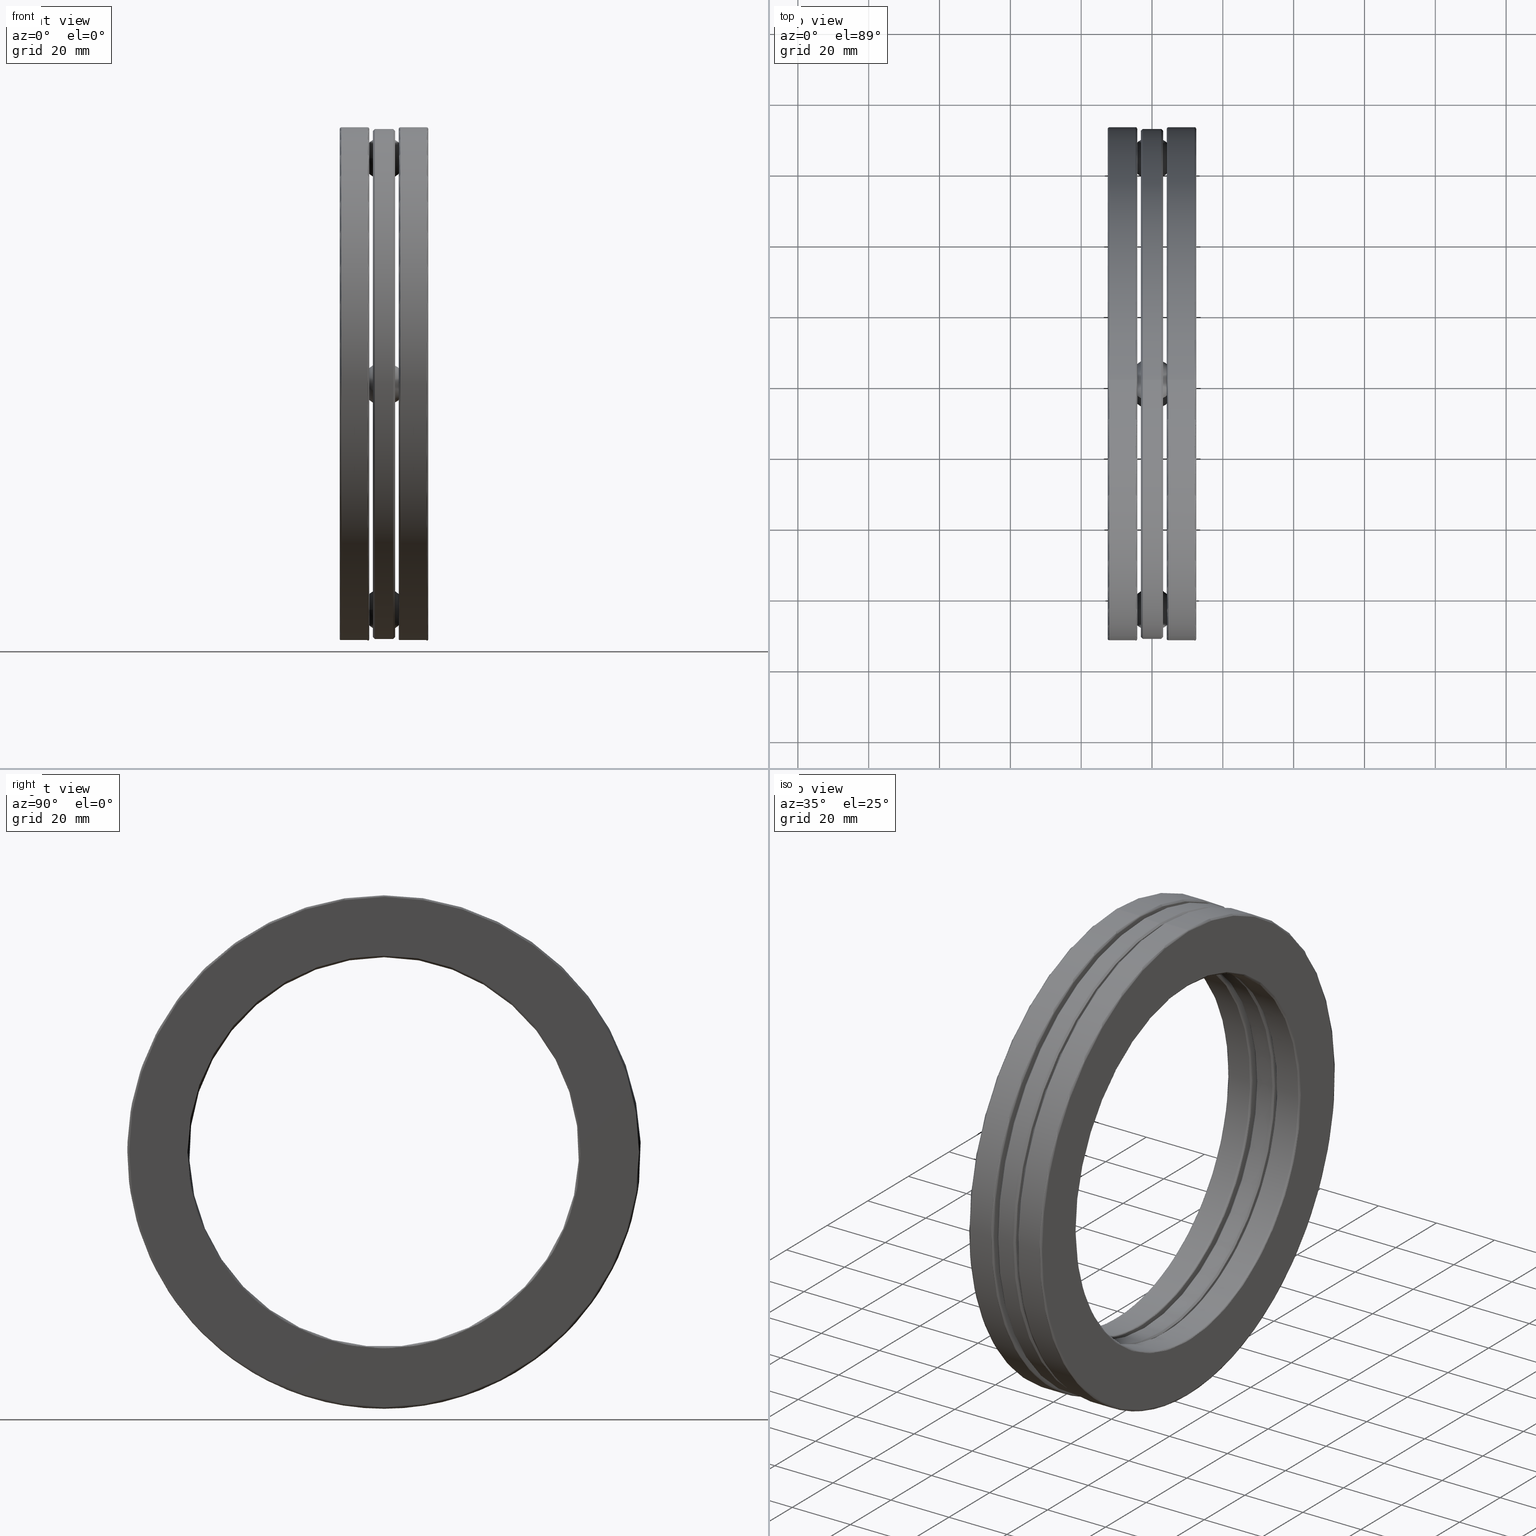
[diagram: canonical four-view strip — front | top / right | iso, engineering-drawing reading convention]
A machine part, canonical four-view strip (front | top / right | iso — engineering-drawing reading convention). The complete STEP part file that produces these views, byte-faithful:
ISO-10303-21;
HEADER;
FILE_DESCRIPTION (( 'STEP AP203' ),
    '1' );
FILE_NAME ('2922-ABB.step',
    '2017-03-07T16:43:15',
    ( '' ),
    ( '' ),
    'SwSTEP 2.0',
    'SolidWorks 2017',
    '' );
FILE_SCHEMA (( 'CONFIG_CONTROL_DESIGN' ));
ENDSEC;

DATA;
#1 = ADVANCED_FACE ( 'NONE', ( #6, #362 ), #318, .F. ) ;
#2 = DIRECTION ( 'NONE',  ( -1.000000000000000000, -0.0000000000000000000, -0.0000000000000000000 ) ) ;
#3 = EDGE_CURVE ( 'NONE', #237, #237, #819, .T. ) ;
#4 = TOROIDAL_SURFACE ( 'NONE', #661, 2.185499999999999800, 0.02000000000000005900 ) ;
#5 = DIRECTION ( 'NONE',  ( 1.000000000000000000, 0.0000000000000000000, 0.0000000000000000000 ) ) ;
#6 = FACE_OUTER_BOUND ( 'NONE', #529, .T. ) ;
#7 = FACE_BOUND ( 'NONE', #174, .T. ) ;
#8 = DIRECTION ( 'NONE',  ( -1.000000000000000000, -0.0000000000000000000, -0.0000000000000000000 ) ) ;
#9 = DIRECTION ( 'NONE',  ( -1.000000000000000000, -0.0000000000000000000, -0.0000000000000000000 ) ) ;
#10 = PLANE ( 'NONE',  #772 ) ;
#11 = EDGE_LOOP ( 'NONE', ( #734 ) ) ;
#12 = DIRECTION ( 'NONE',  ( 0.0000000000000000000, 0.0000000000000000000, 1.000000000000000000 ) ) ;
#13 = AXIS2_PLACEMENT_3D ( 'NONE', #526, #331, #337 ) ;
#14 = CARTESIAN_POINT ( 'NONE',  ( 0.0000000000000000000, 2.629085448148879700E-014, 2.510000000000000200 ) ) ;
#15 = ADVANCED_FACE ( 'NONE', ( #793, #216 ), #615, .F. ) ;
#16 = EDGE_LOOP ( 'NONE', ( #197 ) ) ;
#17 = CIRCLE ( 'NONE', #439, 2.854500000000000300 ) ;
#18 = ORIENTED_EDGE ( 'NONE', *, *, #757, .T. ) ;
#19 = ORIENTED_EDGE ( 'NONE', *, *, #555, .F. ) ;
#20 = FACE_OUTER_BOUND ( 'NONE', #64, .T. ) ;
#21 = CARTESIAN_POINT ( 'NONE',  ( 0.4720000000000012000, 0.0000000000000000000, 0.0000000000000000000 ) ) ;
#22 = PERSON_AND_ORGANIZATION ( #608, #705 ) ;
#23 = CYLINDRICAL_SURFACE ( 'NONE', #480, 2.165500000000000600 ) ;
#24 = AXIS2_PLACEMENT_3D ( 'NONE', #786, #349, #98 ) ;
#25 = DIRECTION ( 'NONE',  ( 0.0000000000000000000, 0.0000000000000000000, 1.000000000000000000 ) ) ;
#26 = CARTESIAN_POINT ( 'NONE',  ( 0.0000000000000000000, 0.0000000000000000000, 0.0000000000000000000 ) ) ;
#27 = CARTESIAN_POINT ( 'NONE',  ( -0.1229999999999999700, 0.0000000000000000000, 2.205499999999999800 ) ) ;
#28 = CARTESIAN_POINT ( 'NONE',  ( -0.1229999999999999600, 2.510000000000000200, 0.0000000000000000000 ) ) ;
#29 = DIMENSIONAL_EXPONENTS ( 1.000000000000000000, 0.0000000000000000000, 0.0000000000000000000, 0.0000000000000000000, 0.0000000000000000000, 0.0000000000000000000, 0.0000000000000000000 ) ;
#30 = CARTESIAN_POINT ( 'NONE',  ( -0.1229999999999999700, 0.0000000000000000000, 0.0000000000000000000 ) ) ;
#31 = DIRECTION ( 'NONE',  ( 0.0000000000000000000, 0.0000000000000000000, 1.000000000000000000 ) ) ;
#32 = FACE_OUTER_BOUND ( 'NONE', #731, .T. ) ;
#33 = FACE_OUTER_BOUND ( 'NONE', #102, .T. ) ;
#34 = CARTESIAN_POINT ( 'NONE',  ( 0.1840032800000009600, 0.0000000000000000000, 2.165500000000000600 ) ) ;
#35 = VERTEX_POINT ( 'NONE', #100 ) ;
#36 = EDGE_LOOP ( 'NONE', ( #824 ) ) ;
#37 = AXIS2_PLACEMENT_3D ( 'NONE', #189, #438, #386 ) ;
#38 = CARTESIAN_POINT ( 'NONE',  ( -0.1840032799999999400, 0.0000000000000000000, 2.854500000000000300 ) ) ;
#39 = MANIFOLD_SOLID_BREP ( 'CirPattern4[2]', #767 ) ;
#40 = DIRECTION ( 'NONE',  ( 1.000000000000000000, 0.0000000000000000000, 0.0000000000000000000 ) ) ;
#41 = CIRCLE ( 'NONE', #494, 2.185499999999999800 ) ;
#42 = ORIENTED_EDGE ( 'NONE', *, *, #260, .T. ) ;
#43 = PERSON_AND_ORGANIZATION ( #608, #705 ) ;
#44 = VERTEX_POINT ( 'NONE', #536 ) ;
#45 = EDGE_LOOP ( 'NONE', ( #688 ) ) ;
#46 = MANIFOLD_SOLID_BREP ( 'CirPattern7', #727 ) ;
#47 = AXIS2_PLACEMENT_3D ( 'NONE', #142, #764, #580 ) ;
#48 = CARTESIAN_POINT ( 'NONE',  ( 0.1840032800000009600, 0.0000000000000000000, 0.0000000000000000000 ) ) ;
#49 = DATE_TIME_ROLE ( 'classification_date' ) ;
#50 = DIRECTION ( 'NONE',  ( 0.0000000000000000000, 0.0000000000000000000, 1.000000000000000000 ) ) ;
#51 = CIRCLE ( 'NONE', #628, 0.2470000000000006600 ) ;
#52 = AXIS2_PLACEMENT_3D ( 'NONE', #78, #515, #397 ) ;
#53 = TOROIDAL_SURFACE ( 'NONE', #83, 2.510000000000000200, 0.2420000000000001900 ) ;
#54 = VERTEX_POINT ( 'NONE', #662 ) ;
#55 = ADVANCED_FACE ( 'NONE', ( #20, #451 ), #645, .F. ) ;
#56 = ORIENTED_EDGE ( 'NONE', *, *, #499, .F. ) ;
#57 = CARTESIAN_POINT ( 'NONE',  ( -0.4920393700787402100, 2.629085448148879700E-014, 2.510000000000000200 ) ) ;
#58 = FACE_OUTER_BOUND ( 'NONE', #36, .T. ) ;
#59 = EDGE_LOOP ( 'NONE', ( #133 ) ) ;
#60 = ORIENTED_EDGE ( 'NONE', *, *, #639, .T. ) ;
#61 = AXIS2_PLACEMENT_3D ( 'NONE', #445, #2, #321 ) ;
#62 = PERSON_AND_ORGANIZATION ( #608, #705 ) ;
#63 = CIRCLE ( 'NONE', #601, 0.2470000000000006600 ) ;
#64 = EDGE_LOOP ( 'NONE', ( #560 ) ) ;
#65 = DIRECTION ( 'NONE',  ( 0.0000000000000000000, -1.000000000000000000, 4.424045333869240300E-015 ) ) ;
#66 = AXIS2_PLACEMENT_3D ( 'NONE', #48, #804, #213 ) ;
#67 = CARTESIAN_POINT ( 'NONE',  ( 0.1230000000000000300, 2.629085448148879700E-014, 2.510000000000000200 ) ) ;
#68 = ADVANCED_FACE ( 'NONE', ( #177, #289 ), #10, .F. ) ;
#69 = CYLINDRICAL_SURFACE ( 'NONE', #184, 2.854500000000000300 ) ;
#70 = EDGE_LOOP ( 'NONE', ( #297 ) ) ;
#71 = CARTESIAN_POINT ( 'NONE',  ( -0.1840032799999996600, 0.0000000000000000000, 0.0000000000000000000 ) ) ;
#72 = VERTEX_POINT ( 'NONE', #720 ) ;
#73 = CARTESIAN_POINT ( 'NONE',  ( 0.1230000000000000300, -8.763618160496265000E-015, -2.510000000000000200 ) ) ;
#74 = PRODUCT_DEFINITION ( 'UNKNOWN', '', #599, #441 ) ;
#75 = DIRECTION ( 'NONE',  ( 0.0000000000000000000, 0.0000000000000000000, 1.000000000000000000 ) ) ;
#76 = ADVANCED_FACE ( 'NONE', ( ), #330, .T. ) ;
#77 = TOROIDAL_SURFACE ( 'NONE', #689, 2.185499999999999800, 0.02000000000000002500 ) ;
#78 = CARTESIAN_POINT ( 'NONE',  ( 0.0000000000000000000, 0.0000000000000000000, 0.0000000000000000000 ) ) ;
#79 = ORIENTED_EDGE ( 'NONE', *, *, #741, .T. ) ;
#80 = ORIENTED_EDGE ( 'NONE', *, *, #765, .F. ) ;
#81 = DATE_AND_TIME ( #311, #637 ) ;
#82 = ADVANCED_FACE ( 'NONE', ( #535, #717 ), #482, .F. ) ;
#83 = AXIS2_PLACEMENT_3D ( 'NONE', #26, #549, #31 ) ;
#84 = DIRECTION ( 'NONE',  ( -1.000000000000000000, -0.0000000000000000000, -0.0000000000000000000 ) ) ;
#85 = DIRECTION ( 'NONE',  ( 0.0000000000000000000, 0.0000000000000000000, 1.000000000000000000 ) ) ;
#86 = ORIENTED_EDGE ( 'NONE', *, *, #765, .T. ) ;
#87 = ORIENTED_EDGE ( 'NONE', *, *, #499, .T. ) ;
#88 = AXIS2_PLACEMENT_3D ( 'NONE', #612, #558, #745 ) ;
#89 = DIRECTION ( 'NONE',  ( 0.0000000000000000000, 0.0000000000000000000, 1.000000000000000000 ) ) ;
#90 = FACE_OUTER_BOUND ( 'NONE', #807, .T. ) ;
#91 = ADVANCED_FACE ( 'NONE', ( ), #768, .T. ) ;
#92 = DIRECTION ( 'NONE',  ( 1.000000000000000000, -0.0000000000000000000, 0.0000000000000000000 ) ) ;
#93 = CARTESIAN_POINT ( 'NONE',  ( -0.4720000000000001400, 0.0000000000000000000, 0.0000000000000000000 ) ) ;
#94 = VERTEX_POINT ( 'NONE', #347 ) ;
#95 = EDGE_LOOP ( 'NONE', ( #392 ) ) ;
#96 = AXIS2_PLACEMENT_3D ( 'NONE', #763, #9, #407 ) ;
#97 = PLANE ( 'NONE',  #468 ) ;
#98 = DIRECTION ( 'NONE',  ( 0.0000000000000000000, 0.0000000000000000000, 1.000000000000000000 ) ) ;
#99 = DIRECTION ( 'NONE',  ( 1.000000000000000000, 0.0000000000000000000, 0.0000000000000000000 ) ) ;
#100 = CARTESIAN_POINT ( 'NONE',  ( 0.1029999999999999900, 0.0000000000000000000, 2.834500000000000200 ) ) ;
#101 = CYLINDRICAL_SURFACE ( 'NONE', #385, 0.2470000000000006600 ) ;
#102 = EDGE_LOOP ( 'NONE', ( #711 ) ) ;
#103 = CARTESIAN_POINT ( 'NONE',  ( -0.1640032799999996700, 0.0000000000000000000, 2.185500000000000200 ) ) ;
#104 = ORIENTED_EDGE ( 'NONE', *, *, #381, .T. ) ;
#105 = AXIS2_PLACEMENT_3D ( 'NONE', #795, #660, #156 ) ;
#106 = AXIS2_PLACEMENT_3D ( 'NONE', #789, #607, #710 ) ;
#107 = FACE_BOUND ( 'NONE', #431, .T. ) ;
#108 = SPHERICAL_SURFACE ( 'NONE', #736, 0.2420000000000001900 ) ;
#109 = CARTESIAN_POINT ( 'NONE',  ( -0.1640032799999996700, 0.0000000000000000000, 0.0000000000000000000 ) ) ;
#110 = APPROVAL_PERSON_ORGANIZATION ( #22, #280, #551 ) ;
#111 = CIRCLE ( 'NONE', #105, 2.332047972337370400 ) ;
#112 =( NAMED_UNIT ( * ) SI_UNIT ( $, .STERADIAN. ) SOLID_ANGLE_UNIT ( ) );
#113 = ORIENTED_EDGE ( 'NONE', *, *, #709, .T. ) ;
#114 = DIRECTION ( 'NONE',  ( -1.000000000000000000, -0.0000000000000000000, -0.0000000000000000000 ) ) ;
#115 = AXIS2_PLACEMENT_3D ( 'NONE', #573, #130, #569 ) ;
#116 = CARTESIAN_POINT ( 'NONE',  ( 0.1640032800000010000, 0.0000000000000000000, 0.0000000000000000000 ) ) ;
#117 = FACE_OUTER_BOUND ( 'NONE', #120, .T. ) ;
#118 = AXIS2_PLACEMENT_3D ( 'NONE', #712, #220, #655 ) ;
#119 = ADVANCED_FACE ( 'NONE', ( #666, #388 ), #273, .T. ) ;
#120 = EDGE_LOOP ( 'NONE', ( #185 ) ) ;
#121 = DIRECTION ( 'NONE',  ( 0.0000000000000000000, 0.0000000000000000000, 1.000000000000000000 ) ) ;
#122 = EDGE_CURVE ( 'NONE', #94, #94, #437, .T. ) ;
#123 = DIRECTION ( 'NONE',  ( 0.0000000000000000000, 1.000000000000000000, -1.106011333467310100E-014 ) ) ;
#124 = FACE_OUTER_BOUND ( 'NONE', #413, .T. ) ;
#125 = DIRECTION ( 'NONE',  ( 1.000000000000000000, 0.0000000000000000000, 0.0000000000000000000 ) ) ;
#126 = AXIS2_PLACEMENT_3D ( 'NONE', #756, #694, #817 ) ;
#127 = DATE_AND_TIME ( #204, #543 ) ;
#128 = VERTEX_POINT ( 'NONE', #671 ) ;
#129 = ORIENTED_EDGE ( 'NONE', *, *, #621, .T. ) ;
#130 = DIRECTION ( 'NONE',  ( -1.000000000000000000, -0.0000000000000000000, -0.0000000000000000000 ) ) ;
#131 = EDGE_CURVE ( 'NONE', #544, #544, #268, .T. ) ;
#132 = CYLINDRICAL_SURFACE ( 'NONE', #502, 0.2470000000000006600 ) ;
#133 = ORIENTED_EDGE ( 'NONE', *, *, #653, .F. ) ;
#134 = DIRECTION ( 'NONE',  ( 0.0000000000000000000, 0.0000000000000000000, 1.000000000000000000 ) ) ;
#135 = CARTESIAN_POINT ( 'NONE',  ( 0.1840032800000008200, 0.0000000000000000000, 0.0000000000000000000 ) ) ;
#136 = EDGE_LOOP ( 'NONE', ( #490 ) ) ;
#137 = EDGE_LOOP ( 'NONE', ( #581 ) ) ;
#138 = DIRECTION ( 'NONE',  ( 0.0000000000000000000, 1.000000000000000000, -8.848090667738480600E-015 ) ) ;
#139 = ORIENTED_EDGE ( 'NONE', *, *, #306, .F. ) ;
#140 = AXIS2_PLACEMENT_3D ( 'NONE', #21, #8, #700 ) ;
#141 = CARTESIAN_POINT ( 'NONE',  ( 0.1230000000000000300, -2.510000000000000200, 0.0000000000000000000 ) ) ;
#142 = CARTESIAN_POINT ( 'NONE',  ( 0.1640032800000009200, 0.0000000000000000000, 0.0000000000000000000 ) ) ;
#143 = FACE_BOUND ( 'NONE', #341, .T. ) ;
#144 = CARTESIAN_POINT ( 'NONE',  ( 0.0000000000000000000, -2.510000000000000200, 0.0000000000000000000 ) ) ;
#145 = ORIENTED_EDGE ( 'NONE', *, *, #545, .F. ) ;
#146 = ORIENTED_EDGE ( 'NONE', *, *, #251, .T. ) ;
#147 = EDGE_CURVE ( 'NONE', #523, #523, #693, .T. ) ;
#148 = CARTESIAN_POINT ( 'NONE',  ( 0.4720000000000010900, 0.0000000000000000000, 0.0000000000000000000 ) ) ;
#149 = CONICAL_SURFACE ( 'NONE', #211, 2.205499999999999800, 0.7853981633974427300 ) ;
#150 = CC_DESIGN_DATE_AND_TIME_ASSIGNMENT ( #379, #49, ( #285 ) ) ;
#151 = ADVANCED_FACE ( 'NONE', ( #161, #812 ), #53, .F. ) ;
#152 = ORIENTED_EDGE ( 'NONE', *, *, #639, .F. ) ;
#153 = EDGE_LOOP ( 'NONE', ( #797 ) ) ;
#154 = DIRECTION ( 'NONE',  ( -1.000000000000000000, -0.0000000000000000000, -0.0000000000000000000 ) ) ;
#155 = EDGE_LOOP ( 'NONE', ( #377 ) ) ;
#156 = DIRECTION ( 'NONE',  ( 0.0000000000000000000, 0.0000000000000000000, 1.000000000000000000 ) ) ;
#157 = AXIS2_PLACEMENT_3D ( 'NONE', #690, #620, #501 ) ;
#158 = CIRCLE ( 'NONE', #796, 0.2470000000000006600 ) ;
#159 = CARTESIAN_POINT ( 'NONE',  ( -0.1229999999999999600, 2.510000000000000200, -0.2470000000000006600 ) ) ;
#160 = PLANE ( 'NONE',  #582 ) ;
#161 = FACE_OUTER_BOUND ( 'NONE', #188, .T. ) ;
#162 = APPROVAL ( #302, 'UNSPECIFIED' ) ;
#163 = CARTESIAN_POINT ( 'NONE',  ( -0.4920000000000001000, 0.0000000000000000000, 2.834500000000000700 ) ) ;
#164 = CARTESIAN_POINT ( 'NONE',  ( 0.1640032800000009200, 0.0000000000000000000, 2.834500000000000700 ) ) ;
#165 = AXIS2_PLACEMENT_3D ( 'NONE', #410, #791, #425 ) ;
#166 = APPLICATION_CONTEXT ( 'configuration controlled 3d designs of mechanical parts and assemblies' ) ;
#167 = CC_DESIGN_APPROVAL ( #561, ( #285 ) ) ;
#168 = FACE_BOUND ( 'NONE', #658, .T. ) ;
#169 = EDGE_LOOP ( 'NONE', ( #209 ) ) ;
#170 = FACE_OUTER_BOUND ( 'NONE', #246, .T. ) ;
#171 = AXIS2_PLACEMENT_3D ( 'NONE', #640, #269, #769 ) ;
#172 = DIRECTION ( 'NONE',  ( 0.0000000000000000000, 0.0000000000000000000, -1.000000000000000000 ) ) ;
#173 = ORIENTED_EDGE ( 'NONE', *, *, #597, .T. ) ;
#174 = EDGE_LOOP ( 'NONE', ( #19 ) ) ;
#175 = AXIS2_PLACEMENT_3D ( 'NONE', #509, #635, #264 ) ;
#176 = CIRCLE ( 'NONE', #577, 2.185499999999999800 ) ;
#177 = FACE_BOUND ( 'NONE', #457, .T. ) ;
#178 = VERTEX_POINT ( 'NONE', #477 ) ;
#179 = ADVANCED_FACE ( 'NONE', ( #33, #692 ), #371, .F. ) ;
#180 = DIRECTION ( 'NONE',  ( 0.0000000000000000000, 0.0000000000000000000, 1.000000000000000000 ) ) ;
#181 = DIRECTION ( 'NONE',  ( 0.0000000000000000000, 0.0000000000000000000, 1.000000000000000000 ) ) ;
#182 = DIRECTION ( 'NONE',  ( 0.0000000000000000000, 0.0000000000000000000, 1.000000000000000000 ) ) ;
#183 = CIRCLE ( 'NONE', #126, 2.854500000000000300 ) ;
#184 = AXIS2_PLACEMENT_3D ( 'NONE', #314, #611, #242 ) ;
#185 = ORIENTED_EDGE ( 'NONE', *, *, #679, .T. ) ;
#186 = PERSON_AND_ORGANIZATION ( #608, #705 ) ;
#187 = CIRCLE ( 'NONE', #47, 2.834500000000000700 ) ;
#188 = EDGE_LOOP ( 'NONE', ( #686 ) ) ;
#189 = CARTESIAN_POINT ( 'NONE',  ( -0.1230000000000000000, 0.0000000000000000000, 0.0000000000000000000 ) ) ;
#190 = FACE_OUTER_BOUND ( 'NONE', #774, .T. ) ;
#191 = AXIS2_PLACEMENT_3D ( 'NONE', #805, #291, #605 ) ;
#192 = EDGE_LOOP ( 'NONE', ( #355 ) ) ;
#193 = CIRCLE ( 'NONE', #301, 2.185499999999999800 ) ;
#194 = ORIENTED_EDGE ( 'NONE', *, *, #3, .T. ) ;
#195 = AXIS2_PLACEMENT_3D ( 'NONE', #390, #507, #342 ) ;
#196 = DIRECTION ( 'NONE',  ( 1.000000000000000000, 0.0000000000000000000, 0.0000000000000000000 ) ) ;
#197 = ORIENTED_EDGE ( 'NONE', *, *, #723, .T. ) ;
#198 = ADVANCED_FACE ( 'NONE', ( #570, #587 ), #462, .T. ) ;
#199 = DIRECTION ( 'NONE',  ( -1.000000000000000000, -0.0000000000000000000, -0.0000000000000000000 ) ) ;
#200 = FACE_BOUND ( 'NONE', #670, .T. ) ;
#201 = ORIENTED_EDGE ( 'NONE', *, *, #691, .F. ) ;
#202 = EDGE_LOOP ( 'NONE', ( #79 ) ) ;
#203 = DIRECTION ( 'NONE',  ( 0.0000000000000000000, 0.0000000000000000000, 1.000000000000000000 ) ) ;
#204 = CALENDAR_DATE ( 2017, 7, 3 ) ;
#205 = VERTEX_POINT ( 'NONE', #164 ) ;
#206 = ORIENTED_EDGE ( 'NONE', *, *, #667, .T. ) ;
#207 = CARTESIAN_POINT ( 'NONE',  ( -0.1229999999999999700, -3.448453440278159000E-018, 0.0000000000000000000 ) ) ;
#208 = CARTESIAN_POINT ( 'NONE',  ( 0.1640032800000009200, 2.588782924243229700E-017, 0.0000000000000000000 ) ) ;
#209 = ORIENTED_EDGE ( 'NONE', *, *, #260, .F. ) ;
#210 = CARTESIAN_POINT ( 'NONE',  ( -0.1229999999999999600, 0.2470000000000269800, 2.509999999999998000 ) ) ;
#211 = AXIS2_PLACEMENT_3D ( 'NONE', #30, #592, #472 ) ;
#212 = CARTESIAN_POINT ( 'NONE',  ( 0.1640032800000010000, 0.0000000000000000000, 2.185499999999999800 ) ) ;
#213 = DIRECTION ( 'NONE',  ( 0.0000000000000000000, 0.0000000000000000000, 1.000000000000000000 ) ) ;
#214 = ADVANCED_FACE ( 'NONE', ( #766, #32 ), #760, .T. ) ;
#215 = FACE_OUTER_BOUND ( 'NONE', #422, .T. ) ;
#216 = FACE_OUTER_BOUND ( 'NONE', #169, .T. ) ;
#217 = EDGE_CURVE ( 'NONE', #626, #626, #408, .T. ) ;
#218 = VERTEX_POINT ( 'NONE', #360 ) ;
#219 = DIRECTION ( 'NONE',  ( 0.0000000000000000000, 0.0000000000000000000, -1.000000000000000000 ) ) ;
#220 = DIRECTION ( 'NONE',  ( -1.000000000000000000, -0.0000000000000000000, -0.0000000000000000000 ) ) ;
#221 = EDGE_LOOP ( 'NONE', ( #683 ) ) ;
#222 = PLANE ( 'NONE',  #762 ) ;
#223 = CC_DESIGN_PERSON_AND_ORGANIZATION_ASSIGNMENT ( #453, #729, ( #599 ) ) ;
#224 = FACE_OUTER_BOUND ( 'NONE', #11, .T. ) ;
#225 = PERSON_AND_ORGANIZATION_ROLE ( 'design_owner' ) ;
#226 = ORIENTED_EDGE ( 'NONE', *, *, #122, .F. ) ;
#227 = CONICAL_SURFACE ( 'NONE', #13, 2.205499999999999800, 0.7853981633974437300 ) ;
#228 = AXIS2_PLACEMENT_3D ( 'NONE', #496, #678, #121 ) ;
#229 = APPLICATION_PROTOCOL_DEFINITION ( 'international standard', 'config_control_design', 1994, #598 ) ;
#230 = ORIENTED_EDGE ( 'NONE', *, *, #634, .F. ) ;
#231 = EDGE_LOOP ( 'NONE', ( #556 ) ) ;
#232 = AXIS2_PLACEMENT_3D ( 'NONE', #141, #5, #75 ) ;
#233 =( CONVERSION_BASED_UNIT ( 'INCH', #249 ) LENGTH_UNIT ( ) NAMED_UNIT ( #29 ) );
#234 = ORIENTED_EDGE ( 'NONE', *, *, #508, .F. ) ;
#235 = CIRCLE ( 'NONE', #591, 2.332047972337369500 ) ;
#236 = ORIENTED_EDGE ( 'NONE', *, *, #593, .F. ) ;
#237 = VERTEX_POINT ( 'NONE', #415 ) ;
#238 = CARTESIAN_POINT ( 'NONE',  ( 0.1229999999999999700, 0.0000000000000000000, 0.0000000000000000000 ) ) ;
#239 = CC_DESIGN_PERSON_AND_ORGANIZATION_ASSIGNMENT ( #43, #225, ( #292 ) ) ;
#240 = DIRECTION ( 'NONE',  ( -1.000000000000000000, -0.0000000000000000000, -0.0000000000000000000 ) ) ;
#241 = ADVANCED_FACE ( 'NONE', ( #714, #58 ), #387, .T. ) ;
#242 = DIRECTION ( 'NONE',  ( 0.0000000000000000000, 0.0000000000000000000, 1.000000000000000000 ) ) ;
#243 = CC_DESIGN_APPROVAL ( #162, ( #74 ) ) ;
#244 = ADVANCED_FACE ( 'NONE', ( #552, #190 ), #657, .T. ) ;
#245 = CARTESIAN_POINT ( 'NONE',  ( 0.1640032800000009200, 0.0000000000000000000, 0.0000000000000000000 ) ) ;
#246 = EDGE_LOOP ( 'NONE', ( #697 ) ) ;
#247 = CLOSED_SHELL ( 'NONE', ( #76 ) ) ;
#248 = LOCAL_TIME ( 11, 43, 15.00000000000000000, #522 ) ;
#249 = LENGTH_MEASURE_WITH_UNIT ( LENGTH_MEASURE( 0.02539999999999999900 ), #584 );
#250 = DIRECTION ( 'NONE',  ( 0.0000000000000000000, 0.0000000000000000000, 1.000000000000000000 ) ) ;
#251 = EDGE_CURVE ( 'NONE', #72, #72, #533, .T. ) ;
#252 = ORIENTED_EDGE ( 'NONE', *, *, #787, .T. ) ;
#253 = MANIFOLD_SOLID_BREP ( 'Revolve1', #325 ) ;
#254 = EDGE_LOOP ( 'NONE', ( #146 ) ) ;
#255 = DIRECTION ( 'NONE',  ( 1.000000000000000000, 0.0000000000000000000, 0.0000000000000000000 ) ) ;
#256 = TOROIDAL_SURFACE ( 'NONE', #780, 2.834500000000000700, 0.01999999999999988900 ) ;
#257 = FACE_OUTER_BOUND ( 'NONE', #519, .T. ) ;
#258 = DIRECTION ( 'NONE',  ( -1.000000000000000000, -0.0000000000000000000, -0.0000000000000000000 ) ) ;
#259 = FACE_OUTER_BOUND ( 'NONE', #749, .T. ) ;
#260 = EDGE_CURVE ( 'NONE', #668, #668, #810, .T. ) ;
#261 = ORIENTED_EDGE ( 'NONE', *, *, #691, .T. ) ;
#262 = EDGE_LOOP ( 'NONE', ( #790 ) ) ;
#263 = DIRECTION ( 'NONE',  ( 1.000000000000000000, 0.0000000000000000000, 0.0000000000000000000 ) ) ;
#264 = DIRECTION ( 'NONE',  ( 0.0000000000000000000, 0.0000000000000000000, 1.000000000000000000 ) ) ;
#265 = CARTESIAN_POINT ( 'NONE',  ( 0.1029999999999999900, 0.0000000000000000000, 0.0000000000000000000 ) ) ;
#266 = FACE_OUTER_BOUND ( 'NONE', #95, .T. ) ;
#267 = DIRECTION ( 'NONE',  ( 1.000000000000000000, 0.0000000000000000000, 0.0000000000000000000 ) ) ;
#268 = CIRCLE ( 'NONE', #24, 2.834500000000000700 ) ;
#269 = DIRECTION ( 'NONE',  ( -1.000000000000000000, -0.0000000000000000000, -0.0000000000000000000 ) ) ;
#270 = DIRECTION ( 'NONE',  ( 0.0000000000000000000, 0.0000000000000000000, -1.000000000000000000 ) ) ;
#271 = ORIENTED_EDGE ( 'NONE', *, *, #338, .F. ) ;
#272 = AXIS2_PLACEMENT_3D ( 'NONE', #67, #125, #123 ) ;
#273 = PLANE ( 'NONE',  #801 ) ;
#274 = ORIENTED_EDGE ( 'NONE', *, *, #675, .T. ) ;
#275 = FACE_OUTER_BOUND ( 'NONE', #70, .T. ) ;
#276 = FACE_OUTER_BOUND ( 'NONE', #419, .T. ) ;
#277 = EDGE_CURVE ( 'NONE', #500, #500, #351, .T. ) ;
#278 = CARTESIAN_POINT ( 'NONE',  ( 0.4720000000000012000, 0.0000000000000000000, 2.165500000000000600 ) ) ;
#279 = DIRECTION ( 'NONE',  ( 0.0000000000000000000, 0.0000000000000000000, 1.000000000000000000 ) ) ;
#280 = APPROVAL ( #424, 'UNSPECIFIED' ) ;
#281 = FACE_BOUND ( 'NONE', #663, .T. ) ;
#282 = ADVANCED_FACE ( 'NONE', ( #416, #215 ), #160, .T. ) ;
#283 = EDGE_LOOP ( 'NONE', ( #542 ) ) ;
#284 = ORIENTED_EDGE ( 'NONE', *, *, #322, .F. ) ;
#285 = SECURITY_CLASSIFICATION ( '', '', #665 ) ;
#286 = CARTESIAN_POINT ( 'NONE',  ( 0.1840032800000009600, 0.0000000000000000000, 0.0000000000000000000 ) ) ;
#287 = CARTESIAN_POINT ( 'NONE',  ( -0.1640032799999998600, 0.0000000000000000000, 2.687952027662631000 ) ) ;
#288 = FACE_OUTER_BOUND ( 'NONE', #283, .T. ) ;
#289 = FACE_OUTER_BOUND ( 'NONE', #202, .T. ) ;
#290 = CARTESIAN_POINT ( 'NONE',  ( 0.4720000000000010900, 0.0000000000000000000, 2.854500000000000300 ) ) ;
#291 = DIRECTION ( 'NONE',  ( 0.0000000000000000000, 0.0000000000000000000, 1.000000000000000000 ) ) ;
#292 = PRODUCT ( '2922-ABB', '2922-ABB', '', ( #798 ) ) ;
#293 = AXIS2_PLACEMENT_3D ( 'NONE', #404, #464, #89 ) ;
#294 = EDGE_LOOP ( 'NONE', ( #201 ) ) ;
#295 = APPROVAL_ROLE ( '' ) ;
#296 = CIRCLE ( 'NONE', #195, 2.834500000000000700 ) ;
#297 = ORIENTED_EDGE ( 'NONE', *, *, #3, .F. ) ;
#298 = CIRCLE ( 'NONE', #272, 0.2470000000000006600 ) ;
#299 = COORDINATED_UNIVERSAL_TIME_OFFSET ( 5, 0, .BEHIND. ) ;
#300 = VERTEX_POINT ( 'NONE', #724 ) ;
#301 = AXIS2_PLACEMENT_3D ( 'NONE', #531, #411, #350 ) ;
#302 = APPROVAL_STATUS ( 'not_yet_approved' ) ;
#303 = CARTESIAN_POINT ( 'NONE',  ( 0.4720000000000010900, 0.0000000000000000000, 0.0000000000000000000 ) ) ;
#304 = PERSON_AND_ORGANIZATION_ROLE ( 'creator' ) ;
#305 = ORIENTED_EDGE ( 'NONE', *, *, #593, .T. ) ;
#306 = EDGE_CURVE ( 'NONE', #365, #365, #673, .T. ) ;
#307 = ADVANCED_FACE ( 'NONE', ( #257, #559 ), #132, .F. ) ;
#308 = DIRECTION ( 'NONE',  ( 0.0000000000000000000, 0.0000000000000000000, 1.000000000000000000 ) ) ;
#309 = TOROIDAL_SURFACE ( 'NONE', #115, 2.834500000000000700, 0.01999999999999987200 ) ;
#310 = EDGE_LOOP ( 'NONE', ( #113 ) ) ;
#311 = CALENDAR_DATE ( 2017, 7, 3 ) ;
#312 = DIRECTION ( 'NONE',  ( 0.0000000000000000000, 1.000000000000000000, -1.106011333467310100E-014 ) ) ;
#313 = ADVANCED_FACE ( 'NONE', ( #444, #224 ), #475, .T. ) ;
#314 = CARTESIAN_POINT ( 'NONE',  ( 0.0000000000000000000, 0.0000000000000000000, 0.0000000000000000000 ) ) ;
#315 = AXIS2_PLACEMENT_3D ( 'NONE', #449, #463, #334 ) ;
#316 = CIRCLE ( 'NONE', #171, 2.205499999999999800 ) ;
#317 = DIRECTION ( 'NONE',  ( -1.000000000000000000, -0.0000000000000000000, -0.0000000000000000000 ) ) ;
#318 = TOROIDAL_SURFACE ( 'NONE', #52, 2.510000000000000200, 0.2420000000000000200 ) ;
#319 = LOCAL_TIME ( 11, 43, 15.00000000000000000, #751 ) ;
#320 = VERTEX_POINT ( 'NONE', #418 ) ;
#321 = DIRECTION ( 'NONE',  ( 0.0000000000000000000, 0.0000000000000000000, 1.000000000000000000 ) ) ;
#322 = EDGE_CURVE ( 'NONE', #510, #510, #176, .T. ) ;
#323 = EDGE_LOOP ( 'NONE', ( #553 ) ) ;
#324 = DIRECTION ( 'NONE',  ( 0.0000000000000000000, 0.0000000000000000000, 1.000000000000000000 ) ) ;
#325 = CLOSED_SHELL ( 'NONE', ( #1, #282, #638, #214, #198, #814, #471, #15, #572, #119 ) ) ;
#326 = DIRECTION ( 'NONE',  ( 0.0000000000000000000, 0.0000000000000000000, 1.000000000000000000 ) ) ;
#327 = DIRECTION ( 'NONE',  ( 0.0000000000000000000, 0.0000000000000000000, -1.000000000000000000 ) ) ;
#328 = PRODUCT_RELATED_PRODUCT_CATEGORY ( 'detail', '', ( #292 ) ) ;
#329 = FACE_OUTER_BOUND ( 'NONE', #155, .T. ) ;
#330 = SPHERICAL_SURFACE ( 'NONE', #816, 0.2420000000000001900 ) ;
#331 = DIRECTION ( 'NONE',  ( 1.000000000000000000, 0.0000000000000000000, 0.0000000000000000000 ) ) ;
#332 = DIRECTION ( 'NONE',  ( 1.000000000000000000, 0.0000000000000000000, 0.0000000000000000000 ) ) ;
#333 = VERTEX_POINT ( 'NONE', #278 ) ;
#334 = DIRECTION ( 'NONE',  ( 0.0000000000000000000, 0.0000000000000000000, 1.000000000000000000 ) ) ;
#335 = CC_DESIGN_PERSON_AND_ORGANIZATION_ASSIGNMENT ( #62, #304, ( #74 ) ) ;
#336 = CARTESIAN_POINT ( 'NONE',  ( 0.4919999999999998800, 0.0000000000000000000, 0.0000000000000000000 ) ) ;
#337 = DIRECTION ( 'NONE',  ( 0.0000000000000000000, 0.0000000000000000000, -1.000000000000000000 ) ) ;
#338 = EDGE_CURVE ( 'NONE', #707, #707, #505, .T. ) ;
#339 = FACE_BOUND ( 'NONE', #794, .T. ) ;
#340 = CARTESIAN_POINT ( 'NONE',  ( -0.1640032799999996700, -6.040493489900780000E-017, 0.0000000000000000000 ) ) ;
#341 = EDGE_LOOP ( 'NONE', ( #230 ) ) ;
#342 = DIRECTION ( 'NONE',  ( 0.0000000000000000000, 0.0000000000000000000, 1.000000000000000000 ) ) ;
#343 = UNCERTAINTY_MEASURE_WITH_UNIT (LENGTH_MEASURE( 1.000000000000000100E-005 ), #233, 'distance_accuracy_value', 'NONE');
#344 = VERTEX_POINT ( 'NONE', #538 ) ;
#345 = EDGE_LOOP ( 'NONE', ( #87 ) ) ;
#346 = EDGE_LOOP ( 'NONE', ( #104 ) ) ;
#347 = CARTESIAN_POINT ( 'NONE',  ( 0.1230000000000000300, -2.510000000000000200, 0.2470000000000006600 ) ) ;
#348 = AXIS2_PLACEMENT_3D ( 'NONE', #681, #440, #755 ) ;
#349 = DIRECTION ( 'NONE',  ( -1.000000000000000000, -0.0000000000000000000, -0.0000000000000000000 ) ) ;
#350 = DIRECTION ( 'NONE',  ( 0.0000000000000000000, 0.0000000000000000000, 1.000000000000000000 ) ) ;
#351 = CIRCLE ( 'NONE', #609, 2.165500000000000600 ) ;
#352 = AXIS2_PLACEMENT_3D ( 'NONE', #144, #773, #518 ) ;
#353 = DIRECTION ( 'NONE',  ( 0.0000000000000000000, 0.0000000000000000000, -1.000000000000000000 ) ) ;
#354 = DIRECTION ( 'NONE',  ( -1.000000000000000000, -0.0000000000000000000, -0.0000000000000000000 ) ) ;
#355 = ORIENTED_EDGE ( 'NONE', *, *, #813, .T. ) ;
#356 = VERTEX_POINT ( 'NONE', #596 ) ;
#357 = CARTESIAN_POINT ( 'NONE',  ( -0.1229999999999999600, -0.2470000000000094300, -2.509999999999999800 ) ) ;
#358 = CARTESIAN_POINT ( 'NONE',  ( -0.4920000000000000500, -1.035492459848085400E-016, 0.0000000000000000000 ) ) ;
#359 = CC_DESIGN_APPROVAL ( #280, ( #599 ) ) ;
#360 = CARTESIAN_POINT ( 'NONE',  ( 0.1230000000000000300, 2.510000000000000200, -0.2470000000000006600 ) ) ;
#361 = CIRCLE ( 'NONE', #454, 2.814500000000000200 ) ;
#362 = FACE_OUTER_BOUND ( 'NONE', #221, .T. ) ;
#363 = AXIS2_PLACEMENT_3D ( 'NONE', #245, #375, #672 ) ;
#364 = APPROVAL_DATE_TIME ( #616, #561 ) ;
#365 = VERTEX_POINT ( 'NONE', #594 ) ;
#366 = DIRECTION ( 'NONE',  ( 0.0000000000000000000, 0.0000000000000000000, 1.000000000000000000 ) ) ;
#367 = AXIS2_PLACEMENT_3D ( 'NONE', #401, #196, #203 ) ;
#368 = DIRECTION ( 'NONE',  ( 1.000000000000000000, 0.0000000000000000000, 0.0000000000000000000 ) ) ;
#369 = PRODUCT_DEFINITION_SHAPE ( 'NONE', 'NONE',  #74 ) ;
#370 = PERSON_AND_ORGANIZATION_ROLE ( 'creator' ) ;
#371 = CYLINDRICAL_SURFACE ( 'NONE', #96, 2.185499999999999800 ) ;
#372 = ORIENTED_EDGE ( 'NONE', *, *, #217, .F. ) ;
#373 = VERTEX_POINT ( 'NONE', #163 ) ;
#374 = CC_DESIGN_DATE_AND_TIME_ASSIGNMENT ( #648, #802, ( #74 ) ) ;
#375 = DIRECTION ( 'NONE',  ( -1.000000000000000000, -0.0000000000000000000, -0.0000000000000000000 ) ) ;
#376 = FACE_BOUND ( 'NONE', #294, .T. ) ;
#377 = ORIENTED_EDGE ( 'NONE', *, *, #679, .F. ) ;
#378 = EDGE_LOOP ( 'NONE', ( #145 ) ) ;
#379 = DATE_AND_TIME ( #578, #319 ) ;
#380 = DIRECTION ( 'NONE',  ( 0.0000000000000000000, 0.0000000000000000000, 1.000000000000000000 ) ) ;
#381 = EDGE_CURVE ( 'NONE', #696, #696, #158, .T. ) ;
#382 = VERTEX_POINT ( 'NONE', #406 ) ;
#383 = PLANE ( 'NONE',  #157 ) ;
#384 = ORIENTED_EDGE ( 'NONE', *, *, #277, .T. ) ;
#385 = AXIS2_PLACEMENT_3D ( 'NONE', #57, #368, #312 ) ;
#386 = DIRECTION ( 'NONE',  ( 0.0000000000000000000, 0.0000000000000000000, -1.000000000000000000 ) ) ;
#387 = TOROIDAL_SURFACE ( 'NONE', #530, 2.185499999999999800, 0.01999999999999931000 ) ;
#388 = FACE_OUTER_BOUND ( 'NONE', #378, .T. ) ;
#389 = SHAPE_DEFINITION_REPRESENTATION ( #369, #448 ) ;
#390 = CARTESIAN_POINT ( 'NONE',  ( -0.4920000000000001000, 0.0000000000000000000, 0.0000000000000000000 ) ) ;
#391 = EDGE_CURVE ( 'NONE', #485, #485, #604, .T. ) ;
#392 = ORIENTED_EDGE ( 'NONE', *, *, #741, .F. ) ;
#393 = CONICAL_SURFACE ( 'NONE', #550, 2.834500000000000200, 0.7853981633974437300 ) ;
#394 = CLOSED_SHELL ( 'NONE', ( #491 ) ) ;
#395 = EDGE_LOOP ( 'NONE', ( #476 ) ) ;
#396 = DIRECTION ( 'NONE',  ( 0.0000000000000000000, 0.0000000000000000000, 1.000000000000000000 ) ) ;
#397 = DIRECTION ( 'NONE',  ( 0.0000000000000000000, 0.0000000000000000000, 1.000000000000000000 ) ) ;
#398 = VERTEX_POINT ( 'NONE', #546 ) ;
#399 = MANIFOLD_SOLID_BREP ( 'CirPattern4[3]', #247 ) ;
#400 = AXIS2_PLACEMENT_3D ( 'NONE', #265, #583, #25 ) ;
#401 = CARTESIAN_POINT ( 'NONE',  ( -0.4920393700787402100, -2.510000000000000200, 0.0000000000000000000 ) ) ;
#402 = ORIENTED_EDGE ( 'NONE', *, *, #621, .F. ) ;
#403 = DIRECTION ( 'NONE',  ( 0.0000000000000000000, 0.0000000000000000000, -1.000000000000000000 ) ) ;
#404 = CARTESIAN_POINT ( 'NONE',  ( -0.4719999999999999200, 0.0000000000000000000, 0.0000000000000000000 ) ) ;
#405 = AXIS2_PLACEMENT_3D ( 'NONE', #525, #267, #703 ) ;
#406 = CARTESIAN_POINT ( 'NONE',  ( 0.1229999999999999700, 0.0000000000000000000, 2.814500000000000200 ) ) ;
#407 = DIRECTION ( 'NONE',  ( 0.0000000000000000000, 0.0000000000000000000, 1.000000000000000000 ) ) ;
#408 = CIRCLE ( 'NONE', #486, 0.2470000000000006600 ) ;
#409 = CALENDAR_DATE ( 2017, 7, 3 ) ;
#410 = CARTESIAN_POINT ( 'NONE',  ( 0.0000000000000000000, 0.0000000000000000000, 0.0000000000000000000 ) ) ;
#411 = DIRECTION ( 'NONE',  ( -1.000000000000000000, -0.0000000000000000000, -0.0000000000000000000 ) ) ;
#412 = CARTESIAN_POINT ( 'NONE',  ( -0.1640032799999996700, -6.040493489900780000E-017, 0.0000000000000000000 ) ) ;
#413 = EDGE_LOOP ( 'NONE', ( #206 ) ) ;
#414 = ORIENTED_EDGE ( 'NONE', *, *, #251, .F. ) ;
#415 = CARTESIAN_POINT ( 'NONE',  ( 0.4919999999999998800, 0.0000000000000000000, 2.834500000000000700 ) ) ;
#416 = FACE_BOUND ( 'NONE', #676, .T. ) ;
#417 = AXIS2_PLACEMENT_3D ( 'NONE', #303, #114, #181 ) ;
#418 = CARTESIAN_POINT ( 'NONE',  ( 0.1230000000000000300, 0.2470000000000269800, 2.509999999999997600 ) ) ;
#419 = EDGE_LOOP ( 'NONE', ( #461 ) ) ;
#420 = EDGE_LOOP ( 'NONE', ( #129 ) ) ;
#421 = LOCAL_TIME ( 11, 43, 15.00000000000000000, #588 ) ;
#422 = EDGE_LOOP ( 'NONE', ( #455 ) ) ;
#423 = AXIS2_PLACEMENT_3D ( 'NONE', #713, #354, #366 ) ;
#424 = APPROVAL_STATUS ( 'not_yet_approved' ) ;
#425 = DIRECTION ( 'NONE',  ( 0.0000000000000000000, 0.0000000000000000000, 1.000000000000000000 ) ) ;
#426 = FACE_BOUND ( 'NONE', #470, .T. ) ;
#427 = FACE_OUTER_BOUND ( 'NONE', #562, .T. ) ;
#428 = PERSON_AND_ORGANIZATION ( #608, #705 ) ;
#429 = DIRECTION ( 'NONE',  ( 0.0000000000000000000, 0.0000000000000000000, 1.000000000000000000 ) ) ;
#430 = CARTESIAN_POINT ( 'NONE',  ( -0.1229999999999999600, -2.510000000000000200, 0.0000000000000000000 ) ) ;
#431 = EDGE_LOOP ( 'NONE', ( #56 ) ) ;
#432 = EDGE_LOOP ( 'NONE', ( #414 ) ) ;
#433 = EDGE_CURVE ( 'NONE', #382, #382, #800, .T. ) ;
#434 = DIRECTION ( 'NONE',  ( -1.000000000000000000, -0.0000000000000000000, -0.0000000000000000000 ) ) ;
#435 = ADVANCED_FACE ( 'NONE', ( #489, #427 ), #101, .F. ) ;
#436 = FACE_OUTER_BOUND ( 'NONE', #682, .T. ) ;
#437 = CIRCLE ( 'NONE', #232, 0.2470000000000006600 ) ;
#438 = DIRECTION ( 'NONE',  ( 1.000000000000000000, 0.0000000000000000000, 0.0000000000000000000 ) ) ;
#439 = AXIS2_PLACEMENT_3D ( 'NONE', #148, #513, #134 ) ;
#440 = DIRECTION ( 'NONE',  ( 0.0000000000000000000, 1.000000000000000000, -3.491481338843133400E-015 ) ) ;
#441 = DESIGN_CONTEXT ( 'detailed design', #598, 'design' ) ;
#442 = FACE_BOUND ( 'NONE', #460, .T. ) ;
#443 = CLOSED_SHELL ( 'NONE', ( #579 ) ) ;
#444 = FACE_OUTER_BOUND ( 'NONE', #674, .T. ) ;
#445 = CARTESIAN_POINT ( 'NONE',  ( -0.4919999999999999900, 0.0000000000000000000, 0.0000000000000000000 ) ) ;
#446 = AXIS2_PLACEMENT_3D ( 'NONE', #109, #586, #279 ) ;
#447 = VERTEX_POINT ( 'NONE', #467 ) ;
#448 = ADVANCED_BREP_SHAPE_REPRESENTATION ( '2922-ABB', ( #253, #777, #622, #483, #39, #399, #46, #191 ), #715 ) ;
#449 = CARTESIAN_POINT ( 'NONE',  ( -0.1029999999999999900, 0.0000000000000000000, 0.0000000000000000000 ) ) ;
#450 = CIRCLE ( 'NONE', #702, 0.2470000000000006600 ) ;
#451 = FACE_OUTER_BOUND ( 'NONE', #346, .T. ) ;
#452 = EDGE_LOOP ( 'NONE', ( #753 ) ) ;
#453 = PERSON_AND_ORGANIZATION ( #608, #705 ) ;
#454 = AXIS2_PLACEMENT_3D ( 'NONE', #627, #258, #324 ) ;
#455 = ORIENTED_EDGE ( 'NONE', *, *, #131, .F. ) ;
#456 = DIRECTION ( 'NONE',  ( 0.0000000000000000000, -1.000000000000000000, 1.047444401652940000E-014 ) ) ;
#457 = EDGE_LOOP ( 'NONE', ( #271 ) ) ;
#458 = EDGE_CURVE ( 'NONE', #300, #300, #748, .T. ) ;
#459 = FACE_BOUND ( 'NONE', #395, .T. ) ;
#460 = EDGE_LOOP ( 'NONE', ( #636 ) ) ;
#461 = ORIENTED_EDGE ( 'NONE', *, *, #555, .T. ) ;
#462 = TOROIDAL_SURFACE ( 'NONE', #423, 2.834500000000000700, 0.01999999999999961500 ) ;
#463 = DIRECTION ( 'NONE',  ( -1.000000000000000000, -0.0000000000000000000, -0.0000000000000000000 ) ) ;
#464 = DIRECTION ( 'NONE',  ( -1.000000000000000000, -0.0000000000000000000, -0.0000000000000000000 ) ) ;
#465 = APPROVAL_PERSON_ORGANIZATION ( #624, #162, #610 ) ;
#466 = VERTEX_POINT ( 'NONE', #290 ) ;
#467 = CARTESIAN_POINT ( 'NONE',  ( 0.1840032800000008200, 0.0000000000000000000, 2.854500000000000300 ) ) ;
#468 = AXIS2_PLACEMENT_3D ( 'NONE', #784, #99, #659 ) ;
#469 = DIRECTION ( 'NONE',  ( 1.000000000000000000, 0.0000000000000000000, 0.0000000000000000000 ) ) ;
#470 = EDGE_LOOP ( 'NONE', ( #372 ) ) ;
#471 = ADVANCED_FACE ( 'NONE', ( #276, #726 ), #4, .T. ) ;
#472 = DIRECTION ( 'NONE',  ( 0.0000000000000000000, 0.0000000000000000000, 1.000000000000000000 ) ) ;
#473 = CARTESIAN_POINT ( 'NONE',  ( 0.4720000000000012000, 0.0000000000000000000, 0.0000000000000000000 ) ) ;
#474 = CARTESIAN_POINT ( 'NONE',  ( -0.1640032799999999200, 0.0000000000000000000, 2.834500000000000700 ) ) ;
#475 = CYLINDRICAL_SURFACE ( 'NONE', #646, 2.834500000000000200 ) ;
#476 = ORIENTED_EDGE ( 'NONE', *, *, #787, .F. ) ;
#477 = CARTESIAN_POINT ( 'NONE',  ( -0.4919999999999999900, 0.0000000000000000000, 2.185499999999999800 ) ) ;
#478 = CARTESIAN_POINT ( 'NONE',  ( 0.1230000000000000300, 2.510000000000000200, 0.0000000000000000000 ) ) ;
#479 = FACE_OUTER_BOUND ( 'NONE', #629, .T. ) ;
#480 = AXIS2_PLACEMENT_3D ( 'NONE', #706, #84, #12 ) ;
#481 = EDGE_LOOP ( 'NONE', ( #18 ) ) ;
#482 = CYLINDRICAL_SURFACE ( 'NONE', #405, 0.2470000000000006600 ) ;
#483 = MANIFOLD_SOLID_BREP ( 'CirPattern4[1]', #443 ) ;
#484 = COORDINATED_UNIVERSAL_TIME_OFFSET ( 5, 0, .BEHIND. ) ;
#485 = VERTEX_POINT ( 'NONE', #287 ) ;
#486 = AXIS2_PLACEMENT_3D ( 'NONE', #28, #534, #172 ) ;
#487 = CLOSED_SHELL ( 'NONE', ( #151, #782, #244, #718, #241, #651, #503, #511, #557, #68 ) ) ;
#488 = DIRECTION ( 'NONE',  ( 0.0000000000000000000, 0.0000000000000000000, 1.000000000000000000 ) ) ;
#489 = FACE_OUTER_BOUND ( 'NONE', #521, .T. ) ;
#490 = ORIENTED_EDGE ( 'NONE', *, *, #433, .T. ) ;
#491 = ADVANCED_FACE ( 'NONE', ( ), #108, .T. ) ;
#492 = DIRECTION ( 'NONE',  ( -1.000000000000000000, -0.0000000000000000000, -0.0000000000000000000 ) ) ;
#493 = DIRECTION ( 'NONE',  ( 0.0000000000000000000, 0.0000000000000000000, 1.000000000000000000 ) ) ;
#494 = AXIS2_PLACEMENT_3D ( 'NONE', #687, #317, #326 ) ;
#495 = ADVANCED_FACE ( 'NONE', ( #792, #623 ), #393, .T. ) ;
#496 = CARTESIAN_POINT ( 'NONE',  ( -0.1640032799999998600, 0.0000000000000000000, 0.0000000000000000000 ) ) ;
#497 = CIRCLE ( 'NONE', #567, 2.854500000000000300 ) ;
#498 = ORIENTED_EDGE ( 'NONE', *, *, #131, .T. ) ;
#499 = EDGE_CURVE ( 'NONE', #554, #554, #51, .T. ) ;
#500 = VERTEX_POINT ( 'NONE', #34 ) ;
#501 = DIRECTION ( 'NONE',  ( 0.0000000000000000000, 0.0000000000000000000, -1.000000000000000000 ) ) ;
#502 = AXIS2_PLACEMENT_3D ( 'NONE', #527, #716, #219 ) ;
#503 = ADVANCED_FACE ( 'NONE', ( #329, #739 ), #613, .T. ) ;
#504 = CARTESIAN_POINT ( 'NONE',  ( -0.1640032799999997200, 0.0000000000000000000, 0.0000000000000000000 ) ) ;
#505 = CIRCLE ( 'NONE', #363, 2.687952027662630500 ) ;
#506 = ORIENTED_EDGE ( 'NONE', *, *, #508, .T. ) ;
#507 = DIRECTION ( 'NONE',  ( -1.000000000000000000, -0.0000000000000000000, -0.0000000000000000000 ) ) ;
#508 = EDGE_CURVE ( 'NONE', #44, #44, #450, .T. ) ;
#509 = CARTESIAN_POINT ( 'NONE',  ( 0.0000000000000000000, 0.0000000000000000000, 0.0000000000000000000 ) ) ;
#510 = VERTEX_POINT ( 'NONE', #212 ) ;
#511 = ADVANCED_FACE ( 'NONE', ( #288, #117 ), #69, .T. ) ;
#512 = DIRECTION ( 'NONE',  ( 1.000000000000000000, 0.0000000000000000000, 0.0000000000000000000 ) ) ;
#513 = DIRECTION ( 'NONE',  ( -1.000000000000000000, -0.0000000000000000000, -0.0000000000000000000 ) ) ;
#514 = EDGE_LOOP ( 'NONE', ( #603 ) ) ;
#515 = DIRECTION ( 'NONE',  ( -1.000000000000000000, -0.0000000000000000000, -0.0000000000000000000 ) ) ;
#516 = CC_DESIGN_PERSON_AND_ORGANIZATION_ASSIGNMENT ( #428, #808, ( #285 ) ) ;
#517 = PLANE ( 'NONE',  #539 ) ;
#518 = DIRECTION ( 'NONE',  ( -1.000000000000000000, 0.0000000000000000000, 0.0000000000000000000 ) ) ;
#519 = EDGE_LOOP ( 'NONE', ( #252 ) ) ;
#520 = EDGE_LOOP ( 'NONE', ( #669 ) ) ;
#521 = EDGE_LOOP ( 'NONE', ( #305 ) ) ;
#522 = COORDINATED_UNIVERSAL_TIME_OFFSET ( 5, 0, .BEHIND. ) ;
#523 = VERTEX_POINT ( 'NONE', #103 ) ;
#524 = AXIS2_PLACEMENT_3D ( 'NONE', #698, #512, #775 ) ;
#525 = CARTESIAN_POINT ( 'NONE',  ( -0.4920393700787402100, -8.763618160496265000E-015, -2.510000000000000200 ) ) ;
#526 = CARTESIAN_POINT ( 'NONE',  ( 0.1230000000000000400, 0.0000000000000000000, 0.0000000000000000000 ) ) ;
#527 = CARTESIAN_POINT ( 'NONE',  ( -0.4920393700787402100, 2.510000000000000200, 0.0000000000000000000 ) ) ;
#528 = EDGE_LOOP ( 'NONE', ( #498 ) ) ;
#529 = EDGE_LOOP ( 'NONE', ( #568 ) ) ;
#530 = AXIS2_PLACEMENT_3D ( 'NONE', #473, #656, #647 ) ;
#531 = CARTESIAN_POINT ( 'NONE',  ( 0.1030000000000000600, 0.0000000000000000000, 0.0000000000000000000 ) ) ;
#532 = DIRECTION ( 'NONE',  ( -1.000000000000000000, -0.0000000000000000000, -0.0000000000000000000 ) ) ;
#533 = CIRCLE ( 'NONE', #571, 2.854499999999999800 ) ;
#534 = DIRECTION ( 'NONE',  ( -1.000000000000000000, -0.0000000000000000000, -0.0000000000000000000 ) ) ;
#535 = FACE_OUTER_BOUND ( 'NONE', #644, .T. ) ;
#536 = CARTESIAN_POINT ( 'NONE',  ( 0.1230000000000000300, -0.2470000000000094300, -2.509999999999999300 ) ) ;
#537 = DIRECTION ( 'NONE',  ( 0.0000000000000000000, 0.0000000000000000000, 1.000000000000000000 ) ) ;
#538 = CARTESIAN_POINT ( 'NONE',  ( 0.4920000000000003300, 0.0000000000000000000, 2.185499999999999800 ) ) ;
#539 = AXIS2_PLACEMENT_3D ( 'NONE', #207, #263, #403 ) ;
#540 = CARTESIAN_POINT ( 'NONE',  ( -0.1229999999999999600, -2.510000000000000200, 0.2470000000000006600 ) ) ;
#541 = FACE_OUTER_BOUND ( 'NONE', #231, .T. ) ;
#542 = ORIENTED_EDGE ( 'NONE', *, *, #723, .F. ) ;
#543 = LOCAL_TIME ( 11, 43, 15.00000000000000000, #484 ) ;
#544 = VERTEX_POINT ( 'NONE', #474 ) ;
#545 = EDGE_CURVE ( 'NONE', #356, #356, #235, .T. ) ;
#546 = CARTESIAN_POINT ( 'NONE',  ( 0.1640032800000009700, 0.0000000000000000000, 2.332047972337370400 ) ) ;
#547 = EDGE_LOOP ( 'NONE', ( #284 ) ) ;
#548 = CC_DESIGN_PERSON_AND_ORGANIZATION_ASSIGNMENT ( #186, #370, ( #599 ) ) ;
#549 = DIRECTION ( 'NONE',  ( -1.000000000000000000, -0.0000000000000000000, -0.0000000000000000000 ) ) ;
#550 = AXIS2_PLACEMENT_3D ( 'NONE', #747, #564, #488 ) ;
#551 = APPROVAL_ROLE ( '' ) ;
#552 = FACE_OUTER_BOUND ( 'NONE', #699, .T. ) ;
#553 = ORIENTED_EDGE ( 'NONE', *, *, #217, .T. ) ;
#554 = VERTEX_POINT ( 'NONE', #357 ) ;
#555 = EDGE_CURVE ( 'NONE', #178, #178, #633, .T. ) ;
#556 = ORIENTED_EDGE ( 'NONE', *, *, #634, .T. ) ;
#557 = ADVANCED_FACE ( 'NONE', ( #266, #575 ), #309, .T. ) ;
#558 = DIRECTION ( 'NONE',  ( -1.000000000000000000, -0.0000000000000000000, -0.0000000000000000000 ) ) ;
#559 = FACE_OUTER_BOUND ( 'NONE', #323, .T. ) ;
#560 = ORIENTED_EDGE ( 'NONE', *, *, #122, .T. ) ;
#561 = APPROVAL ( #738, 'UNSPECIFIED' ) ;
#562 = EDGE_LOOP ( 'NONE', ( #261 ) ) ;
#563 = APPROVAL_DATE_TIME ( #127, #280 ) ;
#564 = DIRECTION ( 'NONE',  ( -1.000000000000000000, -0.0000000000000000000, -0.0000000000000000000 ) ) ;
#565 = EDGE_LOOP ( 'NONE', ( #402 ) ) ;
#566 = CARTESIAN_POINT ( 'NONE',  ( -0.1840032799999999100, 0.0000000000000000000, 0.0000000000000000000 ) ) ;
#567 = AXIS2_PLACEMENT_3D ( 'NONE', #135, #632, #396 ) ;
#568 = ORIENTED_EDGE ( 'NONE', *, *, #545, .T. ) ;
#569 = DIRECTION ( 'NONE',  ( 0.0000000000000000000, 0.0000000000000000000, 1.000000000000000000 ) ) ;
#570 = FACE_OUTER_BOUND ( 'NONE', #735, .T. ) ;
#571 = AXIS2_PLACEMENT_3D ( 'NONE', #93, #532, #537 ) ;
#572 = ADVANCED_FACE ( 'NONE', ( #595, #436 ), #77, .T. ) ;
#573 = CARTESIAN_POINT ( 'NONE',  ( 0.1840032800000008500, 0.0000000000000000000, 0.0000000000000000000 ) ) ;
#574 = PLANE ( 'NONE',  #524 ) ;
#575 = FACE_OUTER_BOUND ( 'NONE', #16, .T. ) ;
#576 = ORIENTED_EDGE ( 'NONE', *, *, #757, .F. ) ;
#577 = AXIS2_PLACEMENT_3D ( 'NONE', #116, #809, #429 ) ;
#578 = CALENDAR_DATE ( 2017, 7, 3 ) ;
#579 = ADVANCED_FACE ( 'NONE', ( ), #783, .T. ) ;
#580 = DIRECTION ( 'NONE',  ( 0.0000000000000000000, 0.0000000000000000000, 1.000000000000000000 ) ) ;
#581 = ORIENTED_EDGE ( 'NONE', *, *, #675, .F. ) ;
#582 = AXIS2_PLACEMENT_3D ( 'NONE', #412, #469, #781 ) ;
#583 = DIRECTION ( 'NONE',  ( -1.000000000000000000, -0.0000000000000000000, -0.0000000000000000000 ) ) ;
#584 =( LENGTH_UNIT ( ) NAMED_UNIT ( * ) SI_UNIT ( $, .METRE. ) );
#585 = CIRCLE ( 'NONE', #315, 2.834500000000000200 ) ;
#586 = DIRECTION ( 'NONE',  ( -1.000000000000000000, -0.0000000000000000000, -0.0000000000000000000 ) ) ;
#587 = FACE_OUTER_BOUND ( 'NONE', #254, .T. ) ;
#588 = COORDINATED_UNIVERSAL_TIME_OFFSET ( 5, 0, .BEHIND. ) ;
#589 = DIRECTION ( 'NONE',  ( 0.0000000000000000000, 0.0000000000000000000, -1.000000000000000000 ) ) ;
#590 = FACE_OUTER_BOUND ( 'NONE', #732, .T. ) ;
#591 = AXIS2_PLACEMENT_3D ( 'NONE', #504, #625, #630 ) ;
#592 = DIRECTION ( 'NONE',  ( -1.000000000000000000, -0.0000000000000000000, -0.0000000000000000000 ) ) ;
#593 = EDGE_CURVE ( 'NONE', #320, #320, #298, .T. ) ;
#594 = CARTESIAN_POINT ( 'NONE',  ( -0.4719999999999999200, 0.0000000000000000000, 2.165499999999999800 ) ) ;
#595 = FACE_OUTER_BOUND ( 'NONE', #520, .T. ) ;
#596 = CARTESIAN_POINT ( 'NONE',  ( -0.1640032799999997200, 0.0000000000000000000, 2.332047972337369500 ) ) ;
#597 = EDGE_CURVE ( 'NONE', #822, #822, #183, .T. ) ;
#598 = APPLICATION_CONTEXT ( 'configuration controlled 3d designs of mechanical parts and assemblies' ) ;
#599 = PRODUCT_DEFINITION_FORMATION_WITH_SPECIFIED_SOURCE ( 'ANY', '', #292, .NOT_KNOWN. ) ;
#600 = APPLICATION_PROTOCOL_DEFINITION ( 'international standard', 'config_control_design', 1994, #166 ) ;
#601 = AXIS2_PLACEMENT_3D ( 'NONE', #478, #92, #353 ) ;
#602 = FACE_BOUND ( 'NONE', #420, .T. ) ;
#603 = ORIENTED_EDGE ( 'NONE', *, *, #147, .T. ) ;
#604 = CIRCLE ( 'NONE', #228, 2.687952027662631000 ) ;
#605 = DIRECTION ( 'NONE',  ( 1.000000000000000000, 0.0000000000000000000, 0.0000000000000000000 ) ) ;
#606 = VERTEX_POINT ( 'NONE', #725 ) ;
#607 = DIRECTION ( 'NONE',  ( -1.000000000000000000, -0.0000000000000000000, -0.0000000000000000000 ) ) ;
#608 = PERSON ( 'UNSPECIFIED', 'UNSPECIFIED', 'UNSPECIFIED', ('UNSPECIFIED'), ('UNSPECIFIED'), ('UNSPECIFIED') ) ;
#609 = AXIS2_PLACEMENT_3D ( 'NONE', #286, #154, #721 ) ;
#610 = APPROVAL_ROLE ( '' ) ;
#611 = DIRECTION ( 'NONE',  ( -1.000000000000000000, -0.0000000000000000000, -0.0000000000000000000 ) ) ;
#612 = CARTESIAN_POINT ( 'NONE',  ( 0.1230000000000000400, 0.0000000000000000000, 0.0000000000000000000 ) ) ;
#613 = TOROIDAL_SURFACE ( 'NONE', #417, 2.834500000000000700, 0.01999999999999931000 ) ;
#614 = DIRECTION ( 'NONE',  ( -1.000000000000000000, -0.0000000000000000000, -0.0000000000000000000 ) ) ;
#615 = CYLINDRICAL_SURFACE ( 'NONE', #175, 2.165499999999999800 ) ;
#616 = DATE_AND_TIME ( #770, #421 ) ;
#617 = DIRECTION ( 'NONE',  ( -1.000000000000000000, 0.0000000000000000000, 0.0000000000000000000 ) ) ;
#618 = AXIS2_PLACEMENT_3D ( 'NONE', #238, #492, #182 ) ;
#619 = ORIENTED_EDGE ( 'NONE', *, *, #391, .T. ) ;
#620 = DIRECTION ( 'NONE',  ( 1.000000000000000000, 0.0000000000000000000, 0.0000000000000000000 ) ) ;
#621 = EDGE_CURVE ( 'NONE', #344, #344, #41, .T. ) ;
#622 = MANIFOLD_SOLID_BREP ( 'Revolve4', #394 ) ;
#623 = FACE_OUTER_BOUND ( 'NONE', #137, .T. ) ;
#624 = PERSON_AND_ORGANIZATION ( #608, #705 ) ;
#625 = DIRECTION ( 'NONE',  ( -1.000000000000000000, -0.0000000000000000000, -0.0000000000000000000 ) ) ;
#626 = VERTEX_POINT ( 'NONE', #159 ) ;
#627 = CARTESIAN_POINT ( 'NONE',  ( -0.1230000000000000000, 0.0000000000000000000, 0.0000000000000000000 ) ) ;
#628 = AXIS2_PLACEMENT_3D ( 'NONE', #740, #752, #806 ) ;
#629 = EDGE_LOOP ( 'NONE', ( #652 ) ) ;
#630 = DIRECTION ( 'NONE',  ( 0.0000000000000000000, 0.0000000000000000000, 1.000000000000000000 ) ) ;
#631 = ADVANCED_FACE ( 'NONE', ( #339, #168, #200, #459, #442, #479 ), #383, .T. ) ;
#632 = DIRECTION ( 'NONE',  ( -1.000000000000000000, -0.0000000000000000000, -0.0000000000000000000 ) ) ;
#633 = CIRCLE ( 'NONE', #61, 2.185499999999999800 ) ;
#634 = EDGE_CURVE ( 'NONE', #785, #785, #361, .T. ) ;
#635 = DIRECTION ( 'NONE',  ( -1.000000000000000000, -0.0000000000000000000, -0.0000000000000000000 ) ) ;
#636 = ORIENTED_EDGE ( 'NONE', *, *, #458, .T. ) ;
#637 = LOCAL_TIME ( 11, 43, 15.00000000000000000, #299 ) ;
#638 = ADVANCED_FACE ( 'NONE', ( #799, #642 ), #256, .T. ) ;
#639 = EDGE_CURVE ( 'NONE', #373, #373, #296, .T. ) ;
#640 = CARTESIAN_POINT ( 'NONE',  ( -0.1229999999999999700, 0.0000000000000000000, 0.0000000000000000000 ) ) ;
#641 = ADVANCED_FACE ( 'NONE', ( #124, #143 ), #779, .T. ) ;
#642 = FACE_OUTER_BOUND ( 'NONE', #528, .T. ) ;
#643 = EDGE_LOOP ( 'NONE', ( #80 ) ) ;
#644 = EDGE_LOOP ( 'NONE', ( #506 ) ) ;
#645 = CYLINDRICAL_SURFACE ( 'NONE', #367, 0.2470000000000006600 ) ;
#646 = AXIS2_PLACEMENT_3D ( 'NONE', #815, #240, #180 ) ;
#647 = DIRECTION ( 'NONE',  ( 0.0000000000000000000, 0.0000000000000000000, 1.000000000000000000 ) ) ;
#648 = DATE_AND_TIME ( #409, #248 ) ;
#649 = FACE_BOUND ( 'NONE', #192, .T. ) ;
#650 = CARTESIAN_POINT ( 'NONE',  ( -0.1840032799999997100, 0.0000000000000000000, 2.165499999999999800 ) ) ;
#651 = ADVANCED_FACE ( 'NONE', ( #602, #275 ), #574, .T. ) ;
#652 = ORIENTED_EDGE ( 'NONE', *, *, #433, .F. ) ;
#653 = EDGE_CURVE ( 'NONE', #333, #333, #664, .T. ) ;
#654 = CARTESIAN_POINT ( 'NONE',  ( 0.1640032800000009200, 0.0000000000000000000, 2.687952027662630500 ) ) ;
#655 = DIRECTION ( 'NONE',  ( 0.0000000000000000000, 0.0000000000000000000, 1.000000000000000000 ) ) ;
#656 = DIRECTION ( 'NONE',  ( -1.000000000000000000, -0.0000000000000000000, -0.0000000000000000000 ) ) ;
#657 = TOROIDAL_SURFACE ( 'NONE', #66, 2.185499999999999800, 0.01999999999999973700 ) ;
#658 = EDGE_LOOP ( 'NONE', ( #226 ) ) ;
#659 = DIRECTION ( 'NONE',  ( 0.0000000000000000000, 0.0000000000000000000, -1.000000000000000000 ) ) ;
#660 = DIRECTION ( 'NONE',  ( -1.000000000000000000, -0.0000000000000000000, -0.0000000000000000000 ) ) ;
#661 = AXIS2_PLACEMENT_3D ( 'NONE', #811, #434, #50 ) ;
#662 = CARTESIAN_POINT ( 'NONE',  ( 0.1030000000000000600, 0.0000000000000000000, 2.185499999999999800 ) ) ;
#663 = EDGE_LOOP ( 'NONE', ( #576 ) ) ;
#664 = CIRCLE ( 'NONE', #140, 2.165500000000000600 ) ;
#665 = SECURITY_CLASSIFICATION_LEVEL ( 'unclassified' ) ;
#666 = FACE_BOUND ( 'NONE', #514, .T. ) ;
#667 = EDGE_CURVE ( 'NONE', #606, #606, #585, .T. ) ;
#668 = VERTEX_POINT ( 'NONE', #650 ) ;
#669 = ORIENTED_EDGE ( 'NONE', *, *, #147, .F. ) ;
#670 = EDGE_LOOP ( 'NONE', ( #236 ) ) ;
#671 = CARTESIAN_POINT ( 'NONE',  ( -0.1029999999999999700, 0.0000000000000000000, 2.185499999999999800 ) ) ;
#672 = DIRECTION ( 'NONE',  ( 0.0000000000000000000, 0.0000000000000000000, 1.000000000000000000 ) ) ;
#673 = CIRCLE ( 'NONE', #293, 2.165499999999999800 ) ;
#674 = EDGE_LOOP ( 'NONE', ( #274 ) ) ;
#675 = EDGE_CURVE ( 'NONE', #35, #35, #701, .T. ) ;
#676 = EDGE_LOOP ( 'NONE', ( #619 ) ) ;
#677 = ADVANCED_FACE ( 'NONE', ( #107, #758, #376, #426, #818, #541 ), #517, .F. ) ;
#678 = DIRECTION ( 'NONE',  ( -1.000000000000000000, -0.0000000000000000000, -0.0000000000000000000 ) ) ;
#679 = EDGE_CURVE ( 'NONE', #466, #466, #17, .T. ) ;
#680 = FACE_OUTER_BOUND ( 'NONE', #59, .T. ) ;
#681 = CARTESIAN_POINT ( 'NONE',  ( 0.0000000000000000000, -8.763618160496265000E-015, -2.510000000000000200 ) ) ;
#682 = EDGE_LOOP ( 'NONE', ( #42 ) ) ;
#683 = ORIENTED_EDGE ( 'NONE', *, *, #391, .F. ) ;
#684 = APPROVAL_PERSON_ORGANIZATION ( #730, #561, #295 ) ;
#685 = FACE_BOUND ( 'NONE', #547, .T. ) ;
#686 = ORIENTED_EDGE ( 'NONE', *, *, #338, .T. ) ;
#687 = CARTESIAN_POINT ( 'NONE',  ( 0.4920000000000003300, 0.0000000000000000000, 0.0000000000000000000 ) ) ;
#688 = ORIENTED_EDGE ( 'NONE', *, *, #381, .F. ) ;
#689 = AXIS2_PLACEMENT_3D ( 'NONE', #71, #759, #380 ) ;
#690 = CARTESIAN_POINT ( 'NONE',  ( 0.1230000000000000300, 1.379381376111267800E-017, 0.0000000000000000000 ) ) ;
#691 = EDGE_CURVE ( 'NONE', #742, #742, #737, .T. ) ;
#692 = FACE_OUTER_BOUND ( 'NONE', #481, .T. ) ;
#693 = CIRCLE ( 'NONE', #446, 2.185500000000000200 ) ;
#694 = DIRECTION ( 'NONE',  ( -1.000000000000000000, -0.0000000000000000000, -0.0000000000000000000 ) ) ;
#695 = DIRECTION ( 'NONE',  ( -1.000000000000000000, -0.0000000000000000000, -0.0000000000000000000 ) ) ;
#696 = VERTEX_POINT ( 'NONE', #540 ) ;
#697 = ORIENTED_EDGE ( 'NONE', *, *, #458, .F. ) ;
#698 = CARTESIAN_POINT ( 'NONE',  ( 0.4920000000000001000, 3.106477379544270100E-016, 0.0000000000000000000 ) ) ;
#699 = EDGE_LOOP ( 'NONE', ( #733 ) ) ;
#700 = DIRECTION ( 'NONE',  ( 0.0000000000000000000, 0.0000000000000000000, 1.000000000000000000 ) ) ;
#701 = CIRCLE ( 'NONE', #400, 2.834500000000000200 ) ;
#702 = AXIS2_PLACEMENT_3D ( 'NONE', #73, #255, #65 ) ;
#703 = DIRECTION ( 'NONE',  ( 0.0000000000000000000, -1.000000000000000000, 4.424045333869240300E-015 ) ) ;
#704 = EDGE_LOOP ( 'NONE', ( #194 ) ) ;
#705 = ORGANIZATION ( 'UNSPECIFIED', 'UNSPECIFIED', '' ) ;
#706 = CARTESIAN_POINT ( 'NONE',  ( 0.0000000000000000000, 0.0000000000000000000, 0.0000000000000000000 ) ) ;
#707 = VERTEX_POINT ( 'NONE', #654 ) ;
#708 = DIRECTION ( 'NONE',  ( -1.000000000000000000, 0.0000000000000000000, 0.0000000000000000000 ) ) ;
#709 = EDGE_CURVE ( 'NONE', #761, #761, #316, .T. ) ;
#710 = DIRECTION ( 'NONE',  ( 0.0000000000000000000, 0.0000000000000000000, 1.000000000000000000 ) ) ;
#711 = ORIENTED_EDGE ( 'NONE', *, *, #813, .F. ) ;
#712 = CARTESIAN_POINT ( 'NONE',  ( -0.1029999999999999700, 0.0000000000000000000, 0.0000000000000000000 ) ) ;
#713 = CARTESIAN_POINT ( 'NONE',  ( -0.4720000000000001400, 0.0000000000000000000, 0.0000000000000000000 ) ) ;
#714 = FACE_OUTER_BOUND ( 'NONE', #565, .T. ) ;
#715 =( GEOMETRIC_REPRESENTATION_CONTEXT ( 3 ) GLOBAL_UNCERTAINTY_ASSIGNED_CONTEXT ( ( #343 ) ) GLOBAL_UNIT_ASSIGNED_CONTEXT ( ( #233, #743, #112 ) ) REPRESENTATION_CONTEXT ( 'NONE', 'WORKASPACE' ) );
#716 = DIRECTION ( 'NONE',  ( 1.000000000000000000, -0.0000000000000000000, -0.0000000000000000000 ) ) ;
#717 = FACE_OUTER_BOUND ( 'NONE', #345, .T. ) ;
#718 = ADVANCED_FACE ( 'NONE', ( #90, #680 ), #23, .F. ) ;
#719 = CIRCLE ( 'NONE', #118, 2.185499999999999800 ) ;
#720 = CARTESIAN_POINT ( 'NONE',  ( -0.4720000000000001400, 0.0000000000000000000, 2.854499999999999800 ) ) ;
#721 = DIRECTION ( 'NONE',  ( 0.0000000000000000000, 0.0000000000000000000, 1.000000000000000000 ) ) ;
#722 = ORIENTED_EDGE ( 'NONE', *, *, #277, .F. ) ;
#723 = EDGE_CURVE ( 'NONE', #447, #447, #497, .T. ) ;
#724 = CARTESIAN_POINT ( 'NONE',  ( 0.1230000000000000400, 0.0000000000000000000, 2.205499999999999800 ) ) ;
#725 = CARTESIAN_POINT ( 'NONE',  ( -0.1029999999999999900, 0.0000000000000000000, 2.834500000000000200 ) ) ;
#726 = FACE_OUTER_BOUND ( 'NONE', #754, .T. ) ;
#727 = CLOSED_SHELL ( 'NONE', ( #641, #495, #313, #631, #750, #179, #771, #677, #307, #435, #55, #82 ) ) ;
#728 = AXIS2_PLACEMENT_3D ( 'NONE', #336, #695, #85 ) ;
#729 = PERSON_AND_ORGANIZATION_ROLE ( 'design_supplier' ) ;
#730 = PERSON_AND_ORGANIZATION ( #608, #705 ) ;
#731 = EDGE_LOOP ( 'NONE', ( #173 ) ) ;
#732 = EDGE_LOOP ( 'NONE', ( #60 ) ) ;
#733 = ORIENTED_EDGE ( 'NONE', *, *, #322, .T. ) ;
#734 = ORIENTED_EDGE ( 'NONE', *, *, #667, .F. ) ;
#735 = EDGE_LOOP ( 'NONE', ( #152 ) ) ;
#736 = AXIS2_PLACEMENT_3D ( 'NONE', #744, #308, #617 ) ;
#737 = CIRCLE ( 'NONE', #823, 0.2470000000000006600 ) ;
#738 = APPROVAL_STATUS ( 'not_yet_approved' ) ;
#739 = FACE_OUTER_BOUND ( 'NONE', #704, .T. ) ;
#740 = CARTESIAN_POINT ( 'NONE',  ( -0.1229999999999999600, -8.763618160496265000E-015, -2.510000000000000200 ) ) ;
#741 = EDGE_CURVE ( 'NONE', #205, #205, #187, .T. ) ;
#742 = VERTEX_POINT ( 'NONE', #210 ) ;
#743 =( NAMED_UNIT ( * ) PLANE_ANGLE_UNIT ( ) SI_UNIT ( $, .RADIAN. ) );
#744 = CARTESIAN_POINT ( 'NONE',  ( 0.0000000000000000000, 2.510000000000000200, 0.0000000000000000000 ) ) ;
#745 = DIRECTION ( 'NONE',  ( 0.0000000000000000000, 0.0000000000000000000, 1.000000000000000000 ) ) ;
#746 = CC_DESIGN_SECURITY_CLASSIFICATION ( #285, ( #599 ) ) ;
#747 = CARTESIAN_POINT ( 'NONE',  ( 0.1029999999999999900, 0.0000000000000000000, 0.0000000000000000000 ) ) ;
#748 = CIRCLE ( 'NONE', #88, 2.205499999999999800 ) ;
#749 = EDGE_LOOP ( 'NONE', ( #86 ) ) ;
#750 = ADVANCED_FACE ( 'NONE', ( #649, #170 ), #227, .F. ) ;
#751 = COORDINATED_UNIVERSAL_TIME_OFFSET ( 5, 0, .BEHIND. ) ;
#752 = DIRECTION ( 'NONE',  ( -1.000000000000000000, -0.0000000000000000000, -0.0000000000000000000 ) ) ;
#753 = ORIENTED_EDGE ( 'NONE', *, *, #597, .F. ) ;
#754 = EDGE_LOOP ( 'NONE', ( #139 ) ) ;
#755 = DIRECTION ( 'NONE',  ( -1.000000000000000000, 0.0000000000000000000, 0.0000000000000000000 ) ) ;
#756 = CARTESIAN_POINT ( 'NONE',  ( -0.1840032799999999400, 0.0000000000000000000, 0.0000000000000000000 ) ) ;
#757 = EDGE_CURVE ( 'NONE', #128, #128, #719, .T. ) ;
#758 = FACE_BOUND ( 'NONE', #45, .T. ) ;
#759 = DIRECTION ( 'NONE',  ( -1.000000000000000000, -0.0000000000000000000, -0.0000000000000000000 ) ) ;
#760 = CYLINDRICAL_SURFACE ( 'NONE', #165, 2.854499999999999800 ) ;
#761 = VERTEX_POINT ( 'NONE', #27 ) ;
#762 = AXIS2_PLACEMENT_3D ( 'NONE', #358, #40, #589 ) ;
#763 = CARTESIAN_POINT ( 'NONE',  ( 0.0000000000000000000, 0.0000000000000000000, 0.0000000000000000000 ) ) ;
#764 = DIRECTION ( 'NONE',  ( -1.000000000000000000, -0.0000000000000000000, -0.0000000000000000000 ) ) ;
#765 = EDGE_CURVE ( 'NONE', #398, #398, #111, .T. ) ;
#766 = FACE_OUTER_BOUND ( 'NONE', #432, .T. ) ;
#767 = CLOSED_SHELL ( 'NONE', ( #91 ) ) ;
#768 = SPHERICAL_SURFACE ( 'NONE', #352, 0.2420000000000001900 ) ;
#769 = DIRECTION ( 'NONE',  ( 0.0000000000000000000, 0.0000000000000000000, 1.000000000000000000 ) ) ;
#770 = CALENDAR_DATE ( 2017, 7, 3 ) ;
#771 = ADVANCED_FACE ( 'NONE', ( #281, #803 ), #149, .F. ) ;
#772 = AXIS2_PLACEMENT_3D ( 'NONE', #208, #332, #270 ) ;
#773 = DIRECTION ( 'NONE',  ( -0.0000000000000000000, 0.0000000000000000000, -1.000000000000000000 ) ) ;
#774 = EDGE_LOOP ( 'NONE', ( #722 ) ) ;
#775 = DIRECTION ( 'NONE',  ( 0.0000000000000000000, 0.0000000000000000000, -1.000000000000000000 ) ) ;
#776 = DIRECTION ( 'NONE',  ( 1.000000000000000000, 0.0000000000000000000, 0.0000000000000000000 ) ) ;
#777 = MANIFOLD_SOLID_BREP ( 'Revolve3', #487 ) ;
#778 = CARTESIAN_POINT ( 'NONE',  ( -0.1229999999999999600, 2.629085448148879700E-014, 2.510000000000000200 ) ) ;
#779 = CONICAL_SURFACE ( 'NONE', #37, 2.814500000000000200, 0.7853981633974431700 ) ;
#780 = AXIS2_PLACEMENT_3D ( 'NONE', #566, #821, #250 ) ;
#781 = DIRECTION ( 'NONE',  ( 0.0000000000000000000, 0.0000000000000000000, -1.000000000000000000 ) ) ;
#782 = ADVANCED_FACE ( 'NONE', ( #685, #259 ), #97, .F. ) ;
#783 = SPHERICAL_SURFACE ( 'NONE', #348, 0.2420000000000001900 ) ;
#784 = CARTESIAN_POINT ( 'NONE',  ( 0.1640032800000009200, 2.588782924243229700E-017, 0.0000000000000000000 ) ) ;
#785 = VERTEX_POINT ( 'NONE', #788 ) ;
#786 = CARTESIAN_POINT ( 'NONE',  ( -0.1640032799999999200, 0.0000000000000000000, 0.0000000000000000000 ) ) ;
#787 = EDGE_CURVE ( 'NONE', #218, #218, #63, .T. ) ;
#788 = CARTESIAN_POINT ( 'NONE',  ( -0.1230000000000000000, 0.0000000000000000000, 2.814500000000000200 ) ) ;
#789 = CARTESIAN_POINT ( 'NONE',  ( -0.1840032799999997100, 0.0000000000000000000, 0.0000000000000000000 ) ) ;
#790 = ORIENTED_EDGE ( 'NONE', *, *, #306, .T. ) ;
#791 = DIRECTION ( 'NONE',  ( -1.000000000000000000, -0.0000000000000000000, -0.0000000000000000000 ) ) ;
#792 = FACE_BOUND ( 'NONE', #136, .T. ) ;
#793 = FACE_OUTER_BOUND ( 'NONE', #262, .T. ) ;
#794 = EDGE_LOOP ( 'NONE', ( #234 ) ) ;
#795 = CARTESIAN_POINT ( 'NONE',  ( 0.1640032800000009700, 0.0000000000000000000, 0.0000000000000000000 ) ) ;
#796 = AXIS2_PLACEMENT_3D ( 'NONE', #430, #614, #493 ) ;
#797 = ORIENTED_EDGE ( 'NONE', *, *, #709, .F. ) ;
#798 = MECHANICAL_CONTEXT ( 'NONE', #166, 'mechanical' ) ;
#799 = FACE_OUTER_BOUND ( 'NONE', #452, .T. ) ;
#800 = CIRCLE ( 'NONE', #618, 2.814500000000000200 ) ;
#801 = AXIS2_PLACEMENT_3D ( 'NONE', #340, #776, #327 ) ;
#802 = DATE_TIME_ROLE ( 'creation_date' ) ;
#803 = FACE_OUTER_BOUND ( 'NONE', #310, .T. ) ;
#804 = DIRECTION ( 'NONE',  ( -1.000000000000000000, -0.0000000000000000000, -0.0000000000000000000 ) ) ;
#805 = CARTESIAN_POINT ( 'NONE',  ( 0.0000000000000000000, 0.0000000000000000000, 0.0000000000000000000 ) ) ;
#806 = DIRECTION ( 'NONE',  ( 0.0000000000000000000, -1.000000000000000000, 2.212022666934620100E-015 ) ) ;
#807 = EDGE_LOOP ( 'NONE', ( #384 ) ) ;
#808 = PERSON_AND_ORGANIZATION_ROLE ( 'classification_officer' ) ;
#809 = DIRECTION ( 'NONE',  ( -1.000000000000000000, -0.0000000000000000000, -0.0000000000000000000 ) ) ;
#810 = CIRCLE ( 'NONE', #106, 2.165499999999999800 ) ;
#811 = CARTESIAN_POINT ( 'NONE',  ( -0.4719999999999999200, 0.0000000000000000000, 0.0000000000000000000 ) ) ;
#812 = FACE_OUTER_BOUND ( 'NONE', #643, .T. ) ;
#813 = EDGE_CURVE ( 'NONE', #54, #54, #193, .T. ) ;
#814 = ADVANCED_FACE ( 'NONE', ( #7, #590 ), #222, .F. ) ;
#815 = CARTESIAN_POINT ( 'NONE',  ( 0.0000000000000000000, 0.0000000000000000000, 0.0000000000000000000 ) ) ;
#816 = AXIS2_PLACEMENT_3D ( 'NONE', #14, #456, #708 ) ;
#817 = DIRECTION ( 'NONE',  ( 0.0000000000000000000, 0.0000000000000000000, 1.000000000000000000 ) ) ;
#818 = FACE_BOUND ( 'NONE', #153, .T. ) ;
#819 = CIRCLE ( 'NONE', #728, 2.834500000000000700 ) ;
#820 = APPROVAL_DATE_TIME ( #81, #162 ) ;
#821 = DIRECTION ( 'NONE',  ( -1.000000000000000000, -0.0000000000000000000, -0.0000000000000000000 ) ) ;
#822 = VERTEX_POINT ( 'NONE', #38 ) ;
#823 = AXIS2_PLACEMENT_3D ( 'NONE', #778, #199, #138 ) ;
#824 = ORIENTED_EDGE ( 'NONE', *, *, #653, .T. ) ;
ENDSEC;
END-ISO-10303-21;
